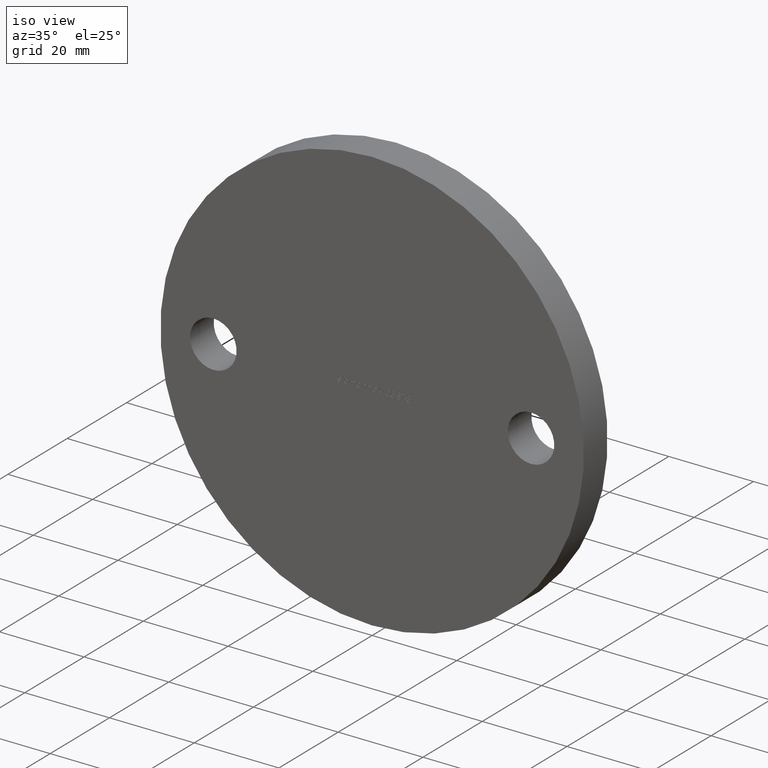
[diagram: clean part render]
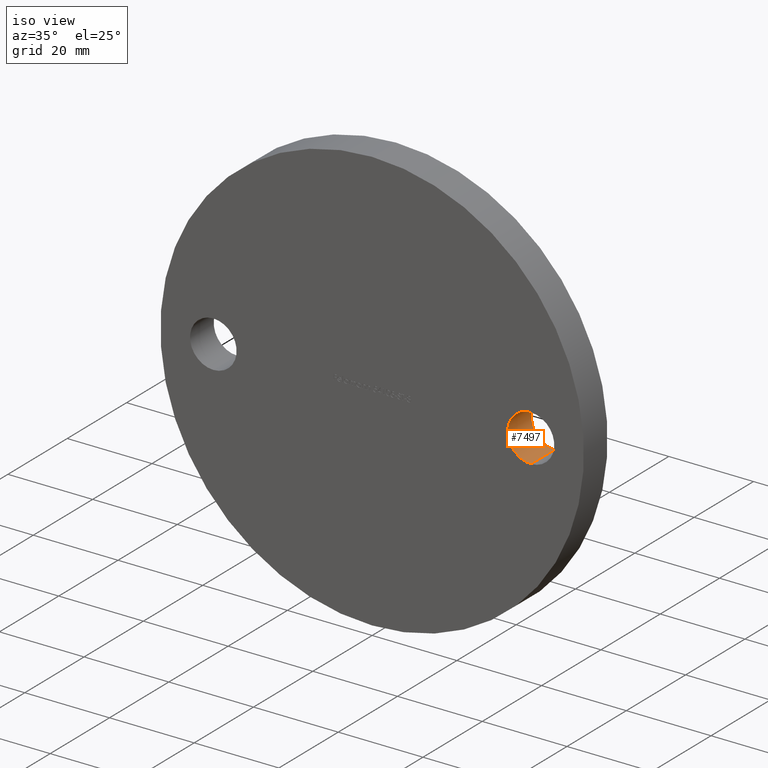
[diagram: same view with one face highlighted and labeled with its STEP entity id]
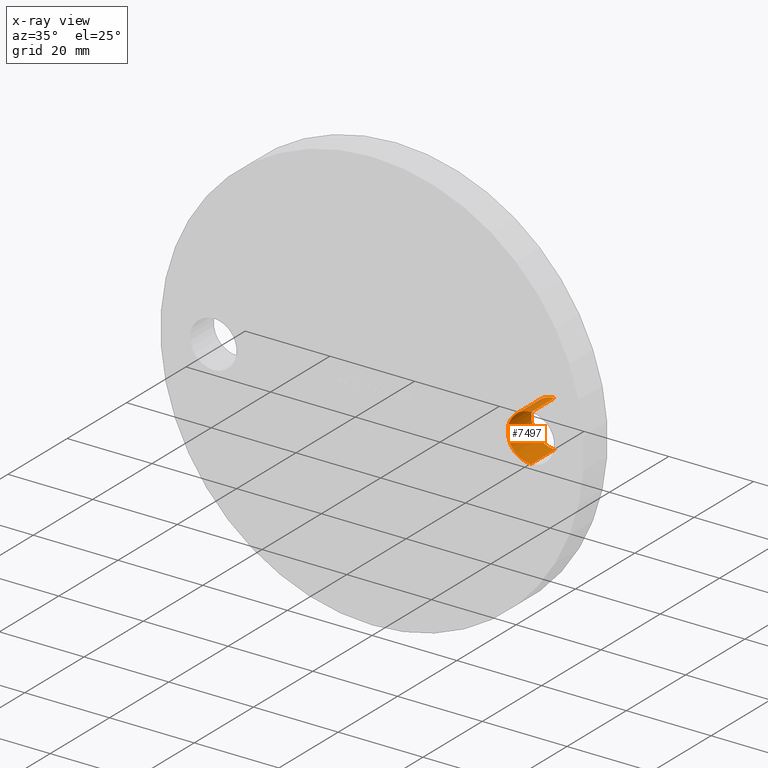
[diagram: x-ray of the same camera — body ghosted, the highlighted face saturated]
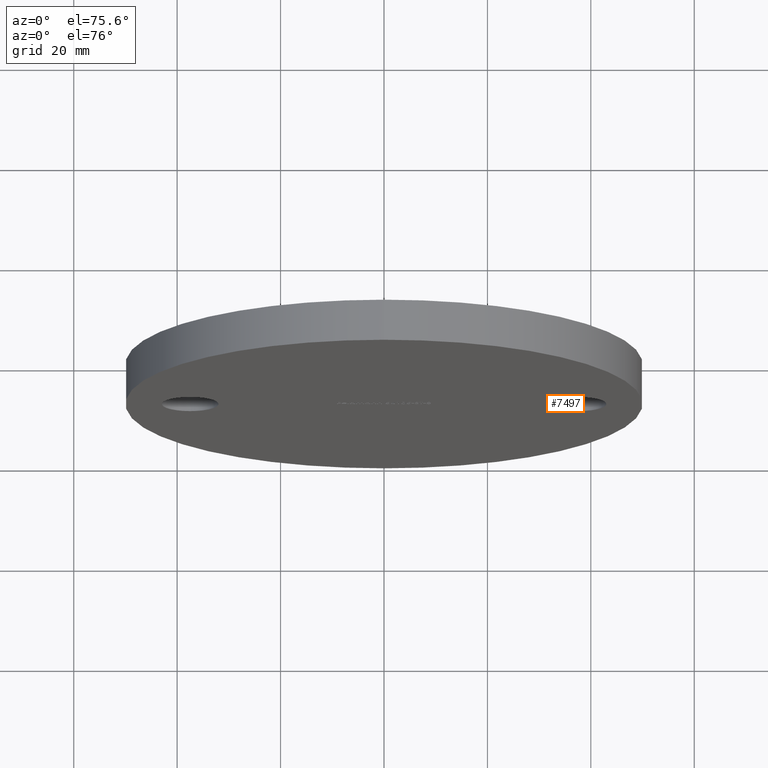
[diagram: same view with one face highlighted and labeled with its STEP entity id]
A machine part, iso view. The second image highlights one B-rep face of the part: STEP entity #7497.
The next image is the same camera in x-ray: the body ghosted, the highlighted face saturated — about 0% of this face is hidden behind the body in this view.
A second angle (auxiliary view) of the same face is appended — the face is thin or edge-on in the first view.
In plain terms, the highlighted cylindrical surface (edge-blend (fillet) strip) has radius 5.5 mm, axis along (-0, 1, -0).
Its self-contained STEP definition (entity closure, byte-faithful):
#197 = VERTEX_POINT ( 'NONE', #12133 ) ;
#217 = ORIENTED_EDGE ( 'NONE', *, *, #4336, .T. ) ;
#714 = DIRECTION ( 'NONE',  ( -0.0000000000000000000, 1.000000000000000000, -0.0000000000000000000 ) ) ;
#1006 = CARTESIAN_POINT ( 'NONE',  ( 37.50000000000000000, 0.0000000000000000000, -9.184850993605148700E-015 ) ) ;
#1131 = ORIENTED_EDGE ( 'NONE', *, *, #9944, .F. ) ;
#1273 = CARTESIAN_POINT ( 'NONE',  ( 37.50000000000000000, 0.0000000000000000000, -5.500000000000005300 ) ) ;
#1320 = CARTESIAN_POINT ( 'NONE',  ( 37.50000000000000000, 8.000000000000000000, -5.500000000000005300 ) ) ;
#1353 = LINE ( 'NONE', #8646, #4186 ) ;
#1469 = AXIS2_PLACEMENT_3D ( 'NONE', #2338, #10426, #3359 ) ;
#1841 = EDGE_LOOP ( 'NONE', ( #7235, #217, #9210, #1131 ) ) ;
#2338 = CARTESIAN_POINT ( 'NONE',  ( 37.50000000000000000, 8.000000000000000000, -9.184850993605148700E-015 ) ) ;
#2820 = CARTESIAN_POINT ( 'NONE',  ( 37.50000000000000000, 0.0000000000000000000, -9.184850993605148700E-015 ) ) ;
#2951 = DIRECTION ( 'NONE',  ( 0.0000000000000000000, 1.000000000000000000, 0.0000000000000000000 ) ) ;
#3319 = VECTOR ( 'NONE', #5259, 1000.000000000000000 ) ;
#3359 = DIRECTION ( 'NONE',  ( 0.0000000000000000000, 0.0000000000000000000, 1.000000000000000000 ) ) ;
#4167 = CIRCLE ( 'NONE', #11987, 5.499999999999996400 ) ;
#4186 = VECTOR ( 'NONE', #714, 1000.000000000000000 ) ;
#4336 = EDGE_CURVE ( 'NONE', #9109, #7364, #1353, .T. ) ;
#5259 = DIRECTION ( 'NONE',  ( -0.0000000000000000000, 1.000000000000000000, -0.0000000000000000000 ) ) ;
#5508 = EDGE_CURVE ( 'NONE', #9109, #8944, #4167, .T. ) ;
#5539 = CYLINDRICAL_SURFACE ( 'NONE', #11082, 5.499999999999996400 ) ;
#5900 = DIRECTION ( 'NONE',  ( 0.0000000000000000000, 0.0000000000000000000, 1.000000000000000000 ) ) ;
#5991 = FACE_OUTER_BOUND ( 'NONE', #1841, .T. ) ;
#7013 = CARTESIAN_POINT ( 'NONE',  ( 37.50000000000000000, 0.0000000000000000000, 5.499999999999986700 ) ) ;
#7235 = ORIENTED_EDGE ( 'NONE', *, *, #5508, .F. ) ;
#7364 = VERTEX_POINT ( 'NONE', #1320 ) ;
#7497 = ADVANCED_FACE ( 'NONE', ( #5991 ), #5539, .F. ) ;
#7544 = CARTESIAN_POINT ( 'NONE',  ( 37.50000000000000000, 0.0000000000000000000, 5.499999999999986700 ) ) ;
#8255 = CIRCLE ( 'NONE', #1469, 5.499999999999996400 ) ;
#8646 = CARTESIAN_POINT ( 'NONE',  ( 37.50000000000000000, 0.0000000000000000000, -5.500000000000005300 ) ) ;
#8944 = VERTEX_POINT ( 'NONE', #7544 ) ;
#9109 = VERTEX_POINT ( 'NONE', #1273 ) ;
#9210 = ORIENTED_EDGE ( 'NONE', *, *, #12226, .T. ) ;
#9944 = EDGE_CURVE ( 'NONE', #8944, #197, #10179, .T. ) ;
#10003 = DIRECTION ( 'NONE',  ( 0.0000000000000000000, 0.0000000000000000000, 1.000000000000000000 ) ) ;
#10179 = LINE ( 'NONE', #7013, #3319 ) ;
#10426 = DIRECTION ( 'NONE',  ( 0.0000000000000000000, 1.000000000000000000, 0.0000000000000000000 ) ) ;
#11082 = AXIS2_PLACEMENT_3D ( 'NONE', #2820, #12828, #5900 ) ;
#11987 = AXIS2_PLACEMENT_3D ( 'NONE', #1006, #2951, #10003 ) ;
#12133 = CARTESIAN_POINT ( 'NONE',  ( 37.50000000000000000, 8.000000000000000000, 5.499999999999986700 ) ) ;
#12226 = EDGE_CURVE ( 'NONE', #7364, #197, #8255, .T. ) ;
#12828 = DIRECTION ( 'NONE',  ( -0.0000000000000000000, 1.000000000000000000, -0.0000000000000000000 ) ) ;